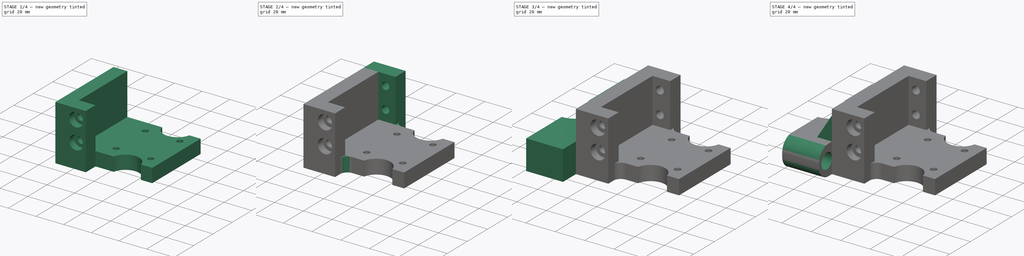
[diagram: build sequence overview — one tinted view per stage of 4, left to right]
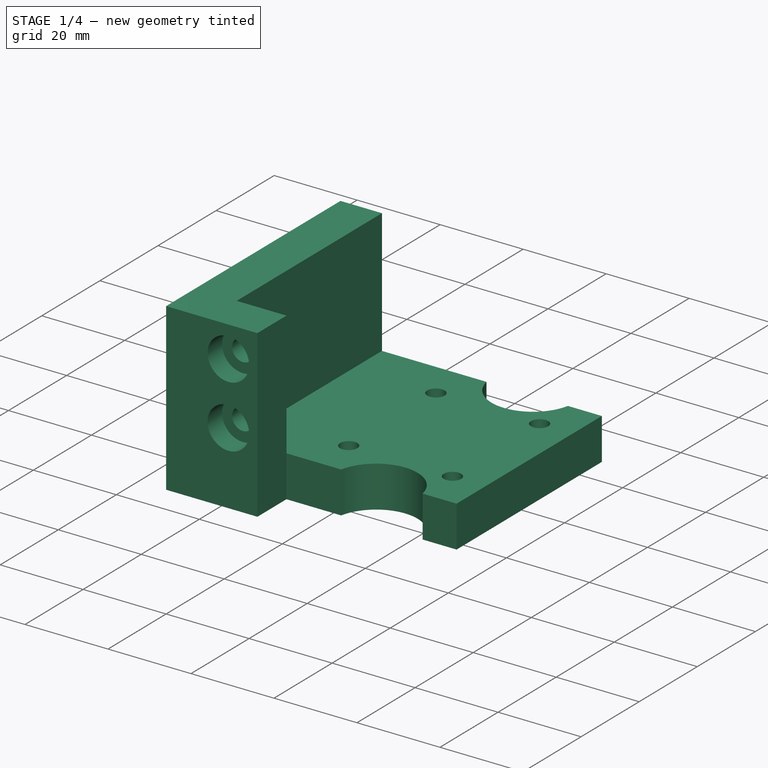
[diagram: stage 1 of 4 — iso view after this stage's code; geometry added in this stage tinted green]
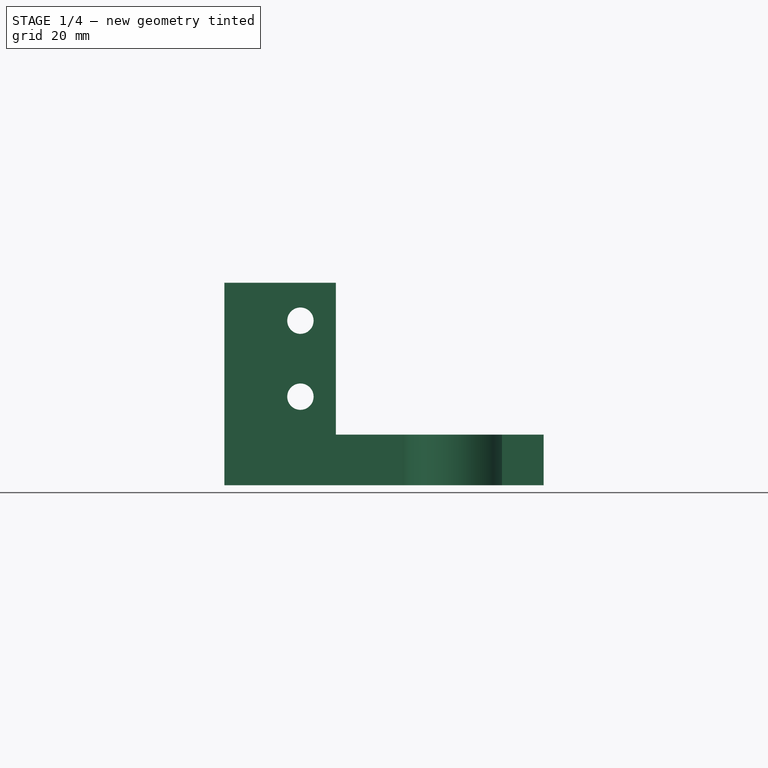
[diagram: stage 1 of 4 — front view after this stage's code; geometry added in this stage tinted green]
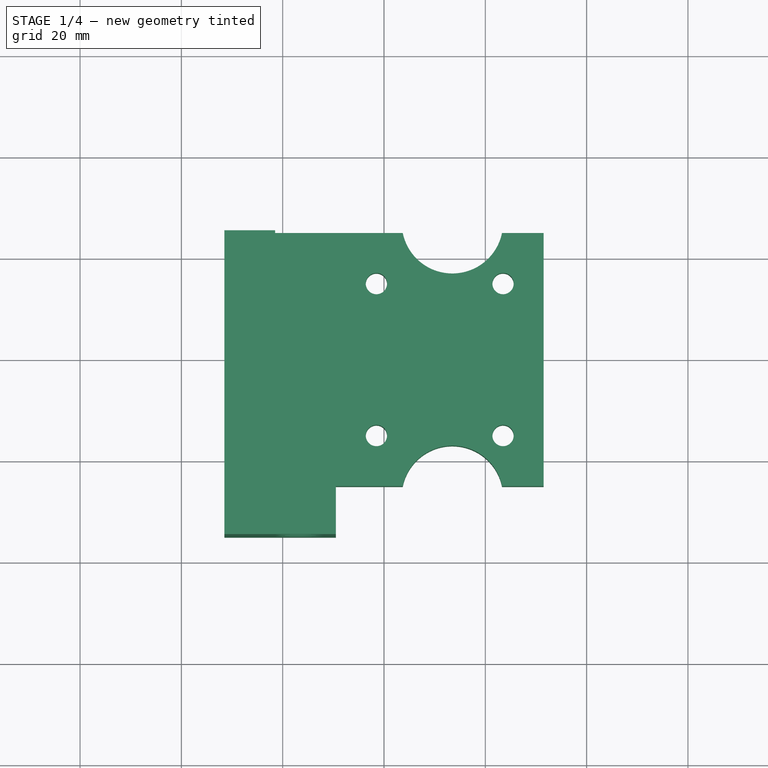
[diagram: stage 1 of 4 — top view after this stage's code; geometry added in this stage tinted green]
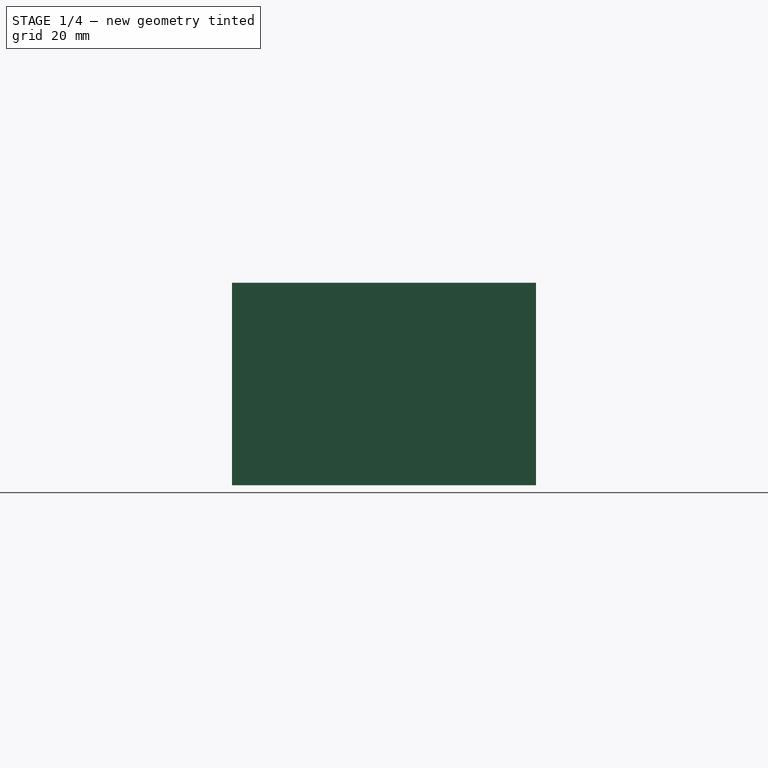
[diagram: stage 1 of 4 — right view after this stage's code; geometry added in this stage tinted green]
FCSTD DOCUMENT  (FreeCAD 2023.521R14555 (Git shallow))
Label: Dremel_Bottom
License: All rights reserved
objects: Sketcher::SketchObject×9, PartDesign::Pocket×5, PartDesign::Pad×4, PartDesign::Mirrored×2, PartDesign::Fillet×2, PartDesign::Chamfer×1, PartDesign::Body×1
note: 61 computed .brp shape members not serialized (recipe doc carries the construction recipe); baked Part::Feature solids carry a one-line shape summary decoded from their .brp

FEATURE [Sketcher::SketchObject] Sketch
  ArcFitTolerance = 1e-06
  AttachmentSupport = -> [XY_Plane]
  ExternalBSplineMaxDegree = 5
  ExternalBSplineTolerance = 0.0001
  FullyConstrained = true
  InternalTolerance = 1e-06
  InvalidShape = false
  MakeInternals = false
  MapMode = 5
  Support = -> [XY_Plane]
  TreeRank = 11
  ValidateShape = false
  sketch-geometry (20):
    g0: LineSegment StartX=-31.5 StartY=-25 StartZ=0 EndX=-31.5 EndY=25 EndZ=0
    g1: LineSegment StartX=31.5 StartY=25 StartZ=0 EndX=31.5 EndY=-25 EndZ=0
    g2: GeomPoint [constr] X=0 Y=0 Z=0
    g3: LineSegment [constr] StartX=-1.5 StartY=-15 StartZ=0 EndX=-1.5 EndY=15 EndZ=0
    g4: LineSegment [constr] StartX=-1.5 StartY=15 StartZ=0 EndX=23.5 EndY=15 EndZ=0
    g5: LineSegment [constr] StartX=23.5 StartY=15 StartZ=0 EndX=23.5 EndY=-15 EndZ=0
    g6: LineSegment [constr] StartX=23.5 StartY=-15 StartZ=0 EndX=-1.5 EndY=-15 EndZ=0
    g7: GeomPoint [constr] X=11 Y=0 Z=0
    g8: Circle CenterX=-1.5 CenterY=15 CenterZ=0 NormalX=0 NormalY=0 NormalZ=1 AngleXU=0 Radius=2.1
    g9: Circle CenterX=23.5 CenterY=15 CenterZ=0 NormalX=0 NormalY=0 NormalZ=1 AngleXU=0 Radius=2.1
    g10: Circle CenterX=23.5 CenterY=-15 CenterZ=0 NormalX=0 NormalY=0 NormalZ=1 AngleXU=0 Radius=2.1
    g11: Circle CenterX=-1.5 CenterY=-15 CenterZ=0 NormalX=0 NormalY=0 NormalZ=1 AngleXU=0 Radius=2.1
    g12: ArcOfCircle CenterX=13.5 CenterY=-27 CenterZ=0 NormalX=0 NormalY=0 NormalZ=1 AngleXU=0 Radius=10 StartAngle=0.201358 EndAngle=2.94023
    g13: LineSegment StartX=-31.5 StartY=-25 StartZ=0 EndX=3.70204 EndY=-25 EndZ=0
    g14: LineSegment StartX=23.298 StartY=-25 StartZ=0 EndX=31.5 EndY=-25 EndZ=0
    g15: ArcOfCircle CenterX=13.5 CenterY=27 CenterZ=0 NormalX=0 NormalY=0 NormalZ=1 AngleXU=0 Radius=10 StartAngle=3.34295 EndAngle=6.08183
    g16: LineSegment StartX=-31.5 StartY=25 StartZ=0 EndX=3.70204 EndY=25 EndZ=0
    g17: LineSegment StartX=31.5 StartY=25 StartZ=0 EndX=23.298 EndY=25 EndZ=0
    g18: GeomPoint [constr] X=-6.5 Y=25 Z=0
    g19: GeomPoint [constr] X=13.5 Y=0 Z=0
  constraints (50):
    c: Vertical(g0)
    c: Vertical(g1)
    c: Symmetric(g1,g0,g2)
    c: Coincident(g2,g-1)
    c: Coincident(g3,g4)
    c: Coincident(g4,g5)
    c: Coincident(g5,g6)
    c: Coincident(g6,g3)
    c: Horizontal(g4)
    c: Horizontal(g6)
    c: Vertical(g3)
    c: Vertical(g5)
    c: Symmetric(g4,g3,g7)
    c: PointOnObject(g7,g-1)
    c: Coincident(g8,g3)
    c: Coincident(g9,g4)
    c: Coincident(g10,g5)
    c: Coincident(g11,g3)
    c: Equal(g8,g9)
    c: Equal(g9,g10)
    c: Equal(g10,g11)
    c: Diameter(g11) = 4.2
    c: DistanceX(g4,g4) = 25
    c: DistanceY(g5,g5) = 30
    c: Coincident(g13,g0)
    c: Coincident(g13,g12)
    c: Coincident(g14,g12)
    c: Coincident(g14,g1)
    c: Horizontal(g14)
    c: Horizontal(g13)
    c: Horizontal(g12,g12)
    c: Coincident(g16,g0)
    c: Horizontal(g16)
    c: Coincident(g17,g1)
    c: Horizontal(g17)
    c: Coincident(g16,g15)
    c: Coincident(g15,g17)
    c: Horizontal(g15,g15)
    c: Vertical(g12,g15)
    c: Equal(g15,g12)
    c: DistanceY(g12,g15) = 54
    c: Diameter(g12) = 20
    c: DistanceX(g12,g10) = 10
    c: DistanceX(g10,g1) = 8
    c: DistanceY(g1,g1) = 50
    c: PointOnObject(g18,g16)
    c: DistanceX(g18,g15) = 20
    c: DistanceX(g0,g18) = 25
    c: PointOnObject(g19,g-1)
    c: Symmetric(g15,g12,g19)
FEATURE [PartDesign::Pad] Pad
  AddSubType = 0
  AlongSketchNormal = false
  AutoTaperInnerAngle = true
  CheckUpToFaceLimits = true
  ClaimChildren = false
  Direction = (0,0,1)
  Fit = 0
  FitJoin = 0
  InnerFit = 0
  InnerFitJoin = 0
  InvalidShape = false
  Length = 10
  Length2 = 10
  Linearize = true
  Midplane = true
  NewSolid = false
  Profile = -> Sketch
  ReferenceAxis = -> Sketch [N_Axis]
  Suppress = false
  TaperInnerAngle = 0
  TaperInnerAngleRev = 0
  TreeRank = 12
  Type = 0
  ValidateShape = true
  _ProfileBasedVersion = 1
FEATURE [Sketcher::SketchObject] Sketch001
  ArcFitTolerance = 1e-06
  AttachmentSupport = -> [Pad]
  ExternalBSplineMaxDegree = 5
  ExternalBSplineTolerance = 0.0001
  ExternalGeometry = -> [Pad]
  FullyConstrained = true
  InternalTolerance = 1e-06
  InvalidShape = false
  MakeInternals = false
  MapMode = 5
  Placement = pos=(0,0,5) rot=(0,0,1;0rad)
  Support = -> [Pad]
  TreeRank = 13
  ValidateShape = false
  sketch-geometry (4):
    g0: LineSegment StartX=-31.5 StartY=25 StartZ=0 EndX=-21.5 EndY=25 EndZ=0
    g1: LineSegment StartX=-21.5 StartY=25 StartZ=0 EndX=-21.5 EndY=-25 EndZ=0
    g2: LineSegment StartX=-21.5 StartY=-25 StartZ=0 EndX=-31.5 EndY=-25 EndZ=0
    g3: LineSegment StartX=-31.5 StartY=-25 StartZ=0 EndX=-31.5 EndY=25 EndZ=0
  constraints (10):
    c: Coincident(g0,g1)
    c: Coincident(g1,g2)
    c: Coincident(g2,g3)
    c: Coincident(g3,g0)
    c: Horizontal(g0)
    c: Horizontal(g2)
    c: Vertical(g1)
    c: Coincident(g0,g-3)
    c: Coincident(g2,g-3)
    c: DistanceX(g2,g2) = 10
FEATURE [PartDesign::Pad] Pad001
  AddSubType = 0
  AlongSketchNormal = false
  AutoTaperInnerAngle = true
  BaseFeature = -> Pad
  CheckUpToFaceLimits = true
  ClaimChildren = false
  Direction = (0,0,1)
  Fit = 0
  FitJoin = 0
  InnerFit = 0
  InnerFitJoin = 0
  InvalidShape = false
  Length = 30
  Length2 = 10
  Linearize = true
  NewSolid = false
  Profile = -> Sketch001
  ReferenceAxis = -> Sketch001 [N_Axis]
  Suppress = false
  TaperInnerAngle = 0
  TaperInnerAngleRev = 0
  TreeRank = 14
  Type = 0
  ValidateShape = true
  _ProfileBasedVersion = 1
FEATURE [Sketcher::SketchObject] Sketch002
  ArcFitTolerance = 1e-06
  AttachmentSupport = -> [Pad001]
  ExternalBSplineMaxDegree = 5
  ExternalBSplineTolerance = 0.0001
  ExternalGeometry = -> [Pad001]
  FullyConstrained = false
  InternalTolerance = 1e-06
  InvalidShape = false
  MakeInternals = false
  MapMode = 5
  Placement = pos=(0,-25,0) rot=(1,0,0;1.5708rad)
  Support = -> [Pad001]
  TreeRank = 15
  ValidateShape = false
  sketch-geometry (9):
    g0: LineSegment StartX=-31.5 StartY=35 StartZ=0 EndX=-9.5 EndY=35 EndZ=0
    g1: LineSegment StartX=-9.5 StartY=35 StartZ=0 EndX=-9.5 EndY=-5 EndZ=0
    g2: LineSegment StartX=-9.5 StartY=-5 StartZ=0 EndX=-31.5 EndY=-5 EndZ=0
    g3: LineSegment StartX=-31.5 StartY=-5 StartZ=0 EndX=-31.5 EndY=35 EndZ=0
    g4: Circle CenterX=-16.5 CenterY=27.5 CenterZ=0 NormalX=0 NormalY=0 NormalZ=1 AngleXU=0 Radius=2.6
    g5: Circle CenterX=-16.5 CenterY=12.5 CenterZ=0 NormalX=0 NormalY=0 NormalZ=1 AngleXU=0 Radius=2.6
    g6: GeomPoint [constr] X=-16.5 Y=20 Z=0
    g7: GeomPoint [constr] X=-31.5 Y=19.9323 Z=0
    g8: GeomPoint [constr] X=-21.5 Y=20 Z=0
  constraints (19):
    c: Coincident(g0,g1)
    c: Coincident(g1,g2)
    c: Coincident(g3,g0)
    c: Horizontal(g0)
    c: Horizontal(g2)
    c: Vertical(g1)
    c: Vertical(g5,g4)
    c: Equal(g4,g5)
    c: Diameter(g5) = 5.2
    c: PointOnObject(g7,g3)
    c: DistanceX(g-3,g1) = 12
    c: Coincident(g2,g-5)
    c: Coincident(g0,g-4)
    c: Coincident(g3,g2)
    c: Symmetric(g-3,g-3,g8)
    c: Horizontal(g6,g8)
    c: Symmetric(g4,g5,g6)
    c: DistanceX(g8,g6) = 5
    c: DistanceY(g5,g4) = 15
FEATURE [PartDesign::Pad] Pad002
  AddSubType = 0
  AlongSketchNormal = false
  AutoTaperInnerAngle = true
  BaseFeature = -> Pad001
  CheckUpToFaceLimits = true
  ClaimChildren = false
  Direction = (0,-1,2e-16)
  Fit = 0
  FitJoin = 0
  InnerFit = 0
  InnerFitJoin = 0
  InvalidShape = false
  Length = 10
  Length2 = 10
  Linearize = true
  NewSolid = false
  Profile = -> Sketch002
  ReferenceAxis = -> Sketch002 [N_Axis]
  Suppress = false
  TaperInnerAngle = 0
  TaperInnerAngleRev = 0
  TreeRank = 16
  Type = 0
  ValidateShape = true
  _ProfileBasedVersion = 1
FEATURE [Sketcher::SketchObject] Sketch004
  ArcFitTolerance = 1e-06
  AttachmentSupport = -> [Pad002]
  ExternalBSplineMaxDegree = 5
  ExternalBSplineTolerance = 0.0001
  ExternalGeometry = -> [Pad002]
  FullyConstrained = true
  InternalTolerance = 1e-06
  InvalidShape = false
  MakeInternals = false
  MapMode = 5
  Placement = pos=(2e-16,-35,6.3e-15) rot=(1,0,0;1.5708rad)
  Support = -> [Pad002]
  TreeRank = 21
  ValidateShape = false
  sketch-geometry (2):
    g0: Circle CenterX=-16.5 CenterY=27.5 CenterZ=0 NormalX=0 NormalY=0 NormalZ=1 AngleXU=0 Radius=5
    g1: Circle CenterX=-16.5 CenterY=12.5 CenterZ=0 NormalX=0 NormalY=0 NormalZ=1 AngleXU=0 Radius=5
  constraints (4):
    c: Coincident(g0,g-3)
    c: Coincident(g1,g-4)
    c: Equal(g1,g0)
    c: Diameter(g0) = 10
FEATURE [PartDesign::Pocket] Pocket001
  AddSubType = 1
  AlongSketchNormal = false
  AutoTaperInnerAngle = true
  BaseFeature = -> Pad002
  CheckUpToFaceLimits = true
  ClaimChildren = false
  Direction = (0,1,-2e-16)
  Fit = 0
  FitJoin = 0
  InnerFit = 0
  InnerFitJoin = 0
  InvalidShape = false
  Length = 5
  Length2 = 10
  Linearize = true
  NewSolid = false
  Profile = -> Sketch004
  ReferenceAxis = -> Sketch004 [N_Axis]
  Suppress = false
  TaperInnerAngle = 0
  TaperInnerAngleRev = 0
  TreeRank = 22
  Type = 0
  ValidateShape = true
  _ProfileBasedVersion = 1
  _Version = 1
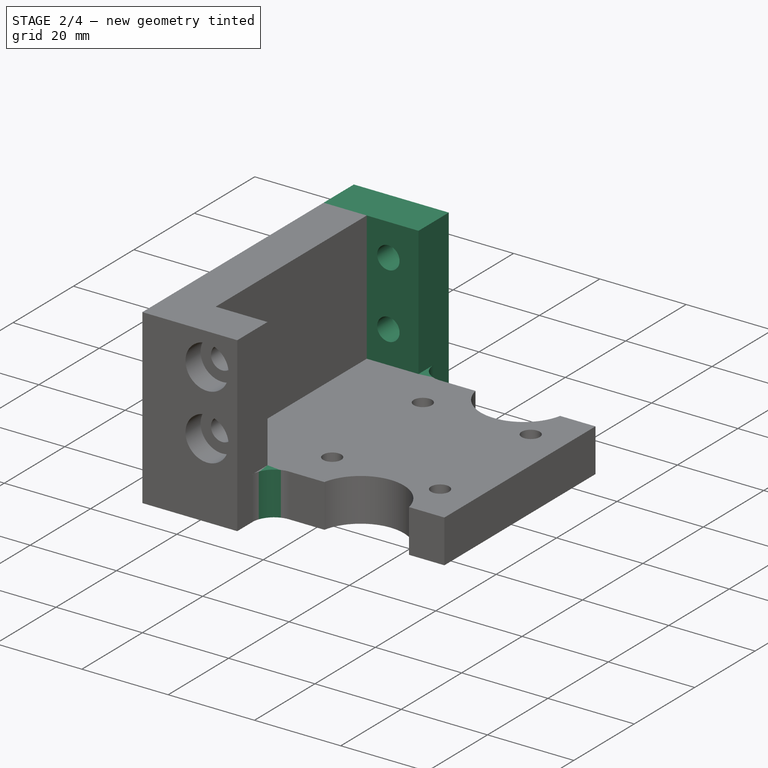
[diagram: stage 2 of 4 — iso view after this stage's code; geometry added in this stage tinted green]
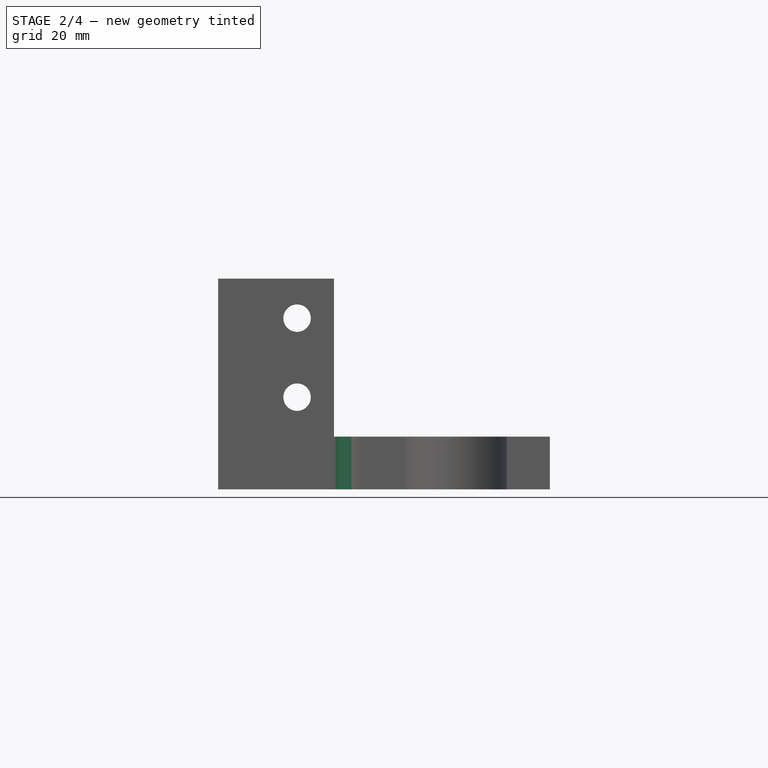
[diagram: stage 2 of 4 — front view after this stage's code; geometry added in this stage tinted green]
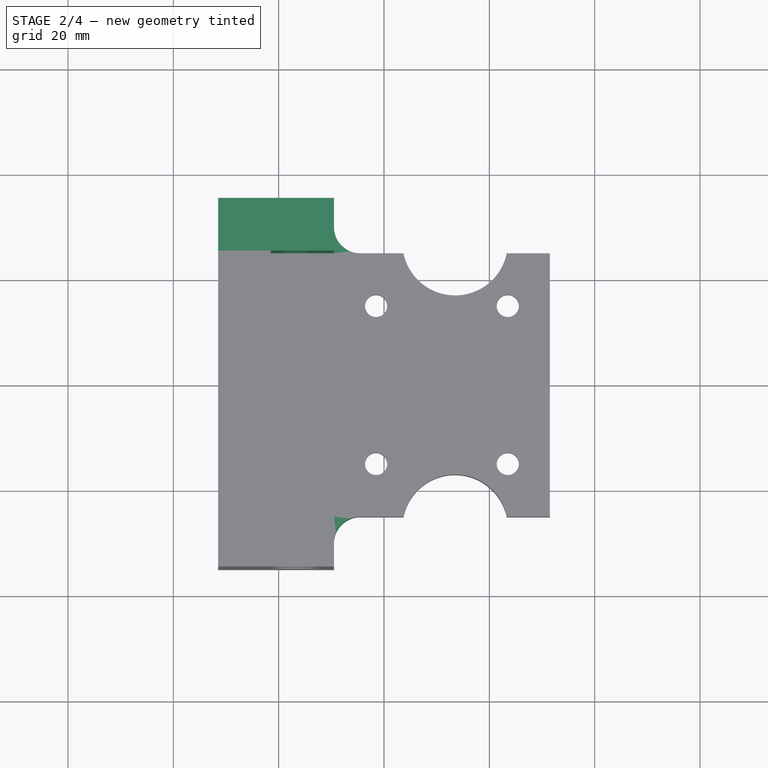
[diagram: stage 2 of 4 — top view after this stage's code; geometry added in this stage tinted green]
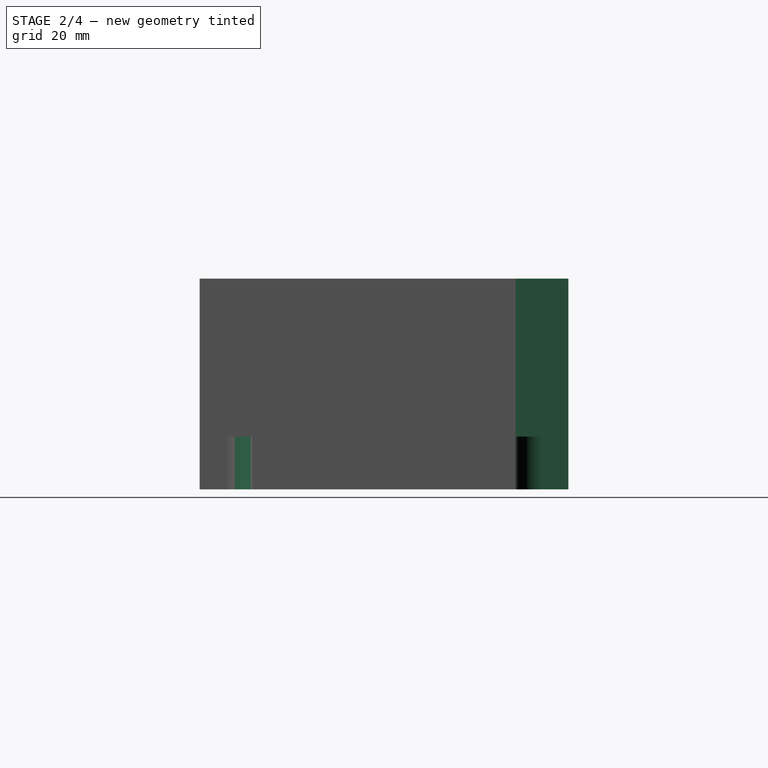
[diagram: stage 2 of 4 — right view after this stage's code; geometry added in this stage tinted green]
FEATURE [PartDesign::Mirrored] Mirrored
  AddSubType = 0
  BaseFeature = -> Pocket001
  CopyShape = false
  InvalidShape = false
  MirrorPlane = -> XZ_Plane
  NewSolid = false
  OriginalSubs = -> [Pad002,Pocket001]
  Originals = -> [Pad002,Pocket001]
  ParallelTransform = true
  SubTransform = true
  Suppress = false
  TreeRank = 17
  ValidateShape = true
  _Version = 3
FEATURE [PartDesign::Fillet] Fillet
  AddSubType = 0
  Base = -> Mirrored [Edge47,Edge10]
  BaseFeature = -> Mirrored
  InvalidShape = false
  NewSolid = false
  Radius = 5
  SupportTransform = false
  Suppress = false
  TreeRank = 23
  UseAllEdges = false
  ValidateShape = true
FEATURE [Sketcher::SketchObject] Sketch003
  ArcFitTolerance = 1e-06
  AttachmentSupport = -> [Fillet]
  ExternalBSplineMaxDegree = 5
  ExternalBSplineTolerance = 0.0001
  ExternalGeometry = -> [Fillet]
  FullyConstrained = true
  InternalTolerance = 1e-06
  InvalidShape = false
  MakeInternals = false
  MapMode = 5
  Placement = pos=(0,0,-5) rot=(1,0,0;3.14159rad)
  Support = -> [Fillet]
  TreeRank = 19
  ValidateShape = false
  sketch-geometry (4):
    g0: Circle CenterX=-1.5 CenterY=15 CenterZ=0 NormalX=0 NormalY=0 NormalZ=1 AngleXU=0 Radius=4.25
    g1: Circle CenterX=23.5 CenterY=15 CenterZ=0 NormalX=0 NormalY=0 NormalZ=1 AngleXU=0 Radius=4.25
    g2: Circle CenterX=23.5 CenterY=-15 CenterZ=0 NormalX=0 NormalY=0 NormalZ=1 AngleXU=0 Radius=4.25
    g3: Circle CenterX=-1.5 CenterY=-15 CenterZ=0 NormalX=0 NormalY=0 NormalZ=1 AngleXU=0 Radius=4.25
  constraints (8):
    c: Coincident(g0,g-3)
    c: Coincident(g1,g-4)
    c: Coincident(g2,g-5)
    c: Coincident(g3,g-6)
    c: Diameter(g0) = 8.5
    c: Equal(g0,g1)
    c: Equal(g1,g2)
    c: Equal(g2,g3)
FEATURE [PartDesign::Pocket] Pocket
  AddSubType = 1
  AlongSketchNormal = false
  AutoTaperInnerAngle = true
  BaseFeature = -> Fillet
  CheckUpToFaceLimits = true
  ClaimChildren = false
  Direction = (0,0,1)
  Fit = 0
  FitJoin = 0
  InnerFit = 0
  InnerFitJoin = 0
  InvalidShape = false
  Length = 5
  Length2 = 10
  Linearize = true
  NewSolid = false
  Profile = -> Sketch003
  ReferenceAxis = -> Sketch003 [N_Axis]
  Suppress = false
  TaperInnerAngle = 0
  TaperInnerAngleRev = 0
  TreeRank = 20
  Type = 0
  ValidateShape = true
  _ProfileBasedVersion = 1
  _Version = 1
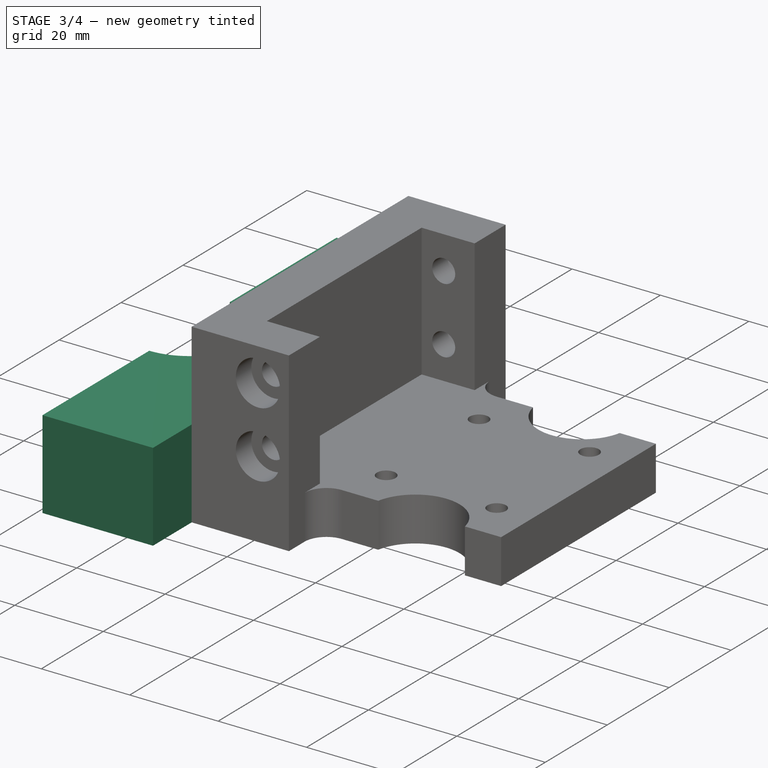
[diagram: stage 3 of 4 — iso view after this stage's code; geometry added in this stage tinted green]
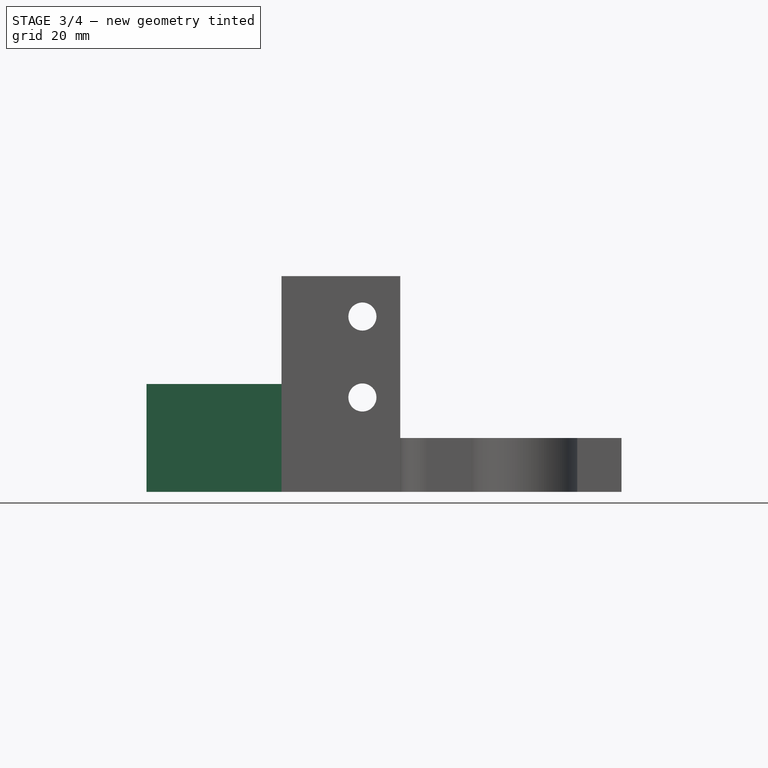
[diagram: stage 3 of 4 — front view after this stage's code; geometry added in this stage tinted green]
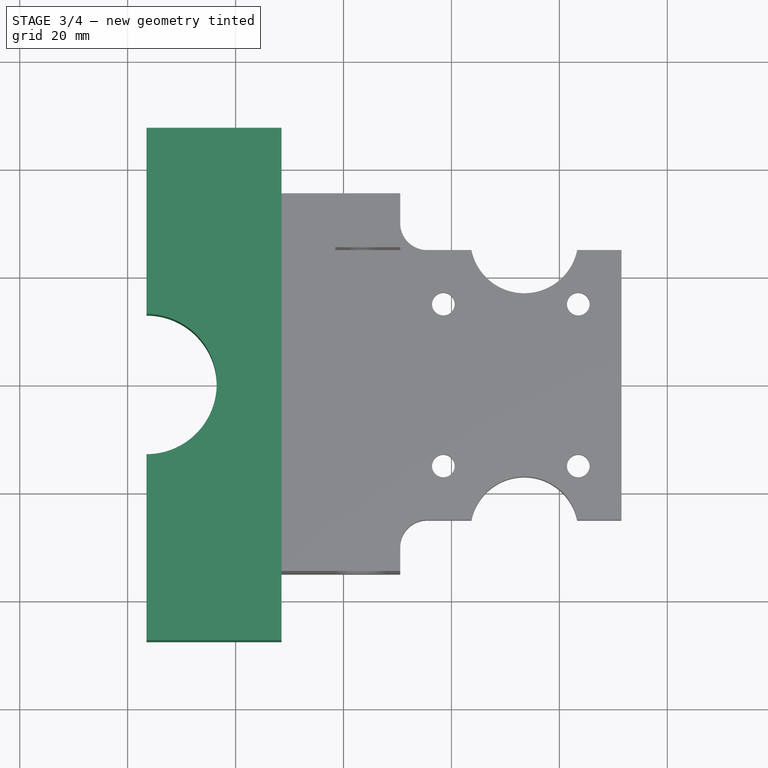
[diagram: stage 3 of 4 — top view after this stage's code; geometry added in this stage tinted green]
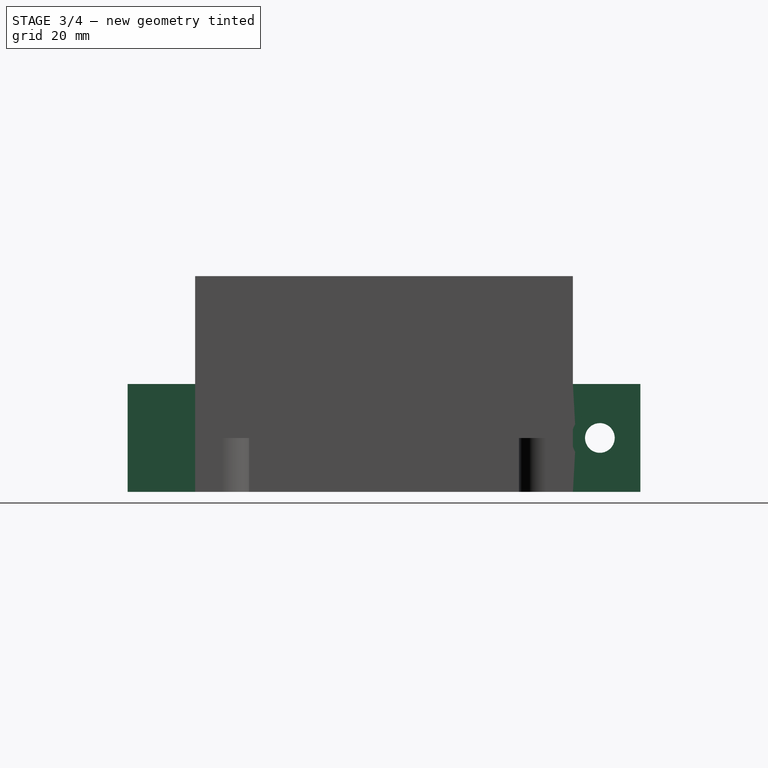
[diagram: stage 3 of 4 — right view after this stage's code; geometry added in this stage tinted green]
FEATURE [Sketcher::SketchObject] Sketch005
  ArcFitTolerance = 1e-06
  AttachmentSupport = -> [Pocket]
  ExternalBSplineMaxDegree = 5
  ExternalBSplineTolerance = 0.0001
  ExternalGeometry = -> [Pocket]
  FullyConstrained = true
  InternalTolerance = 1e-06
  InvalidShape = false
  MakeInternals = false
  MapMode = 5
  Placement = pos=(0,0,-5) rot=(1,0,0;3.14159rad)
  Support = -> [Pocket]
  TreeRank = 24
  ValidateShape = false
  sketch-geometry (7):
    g0: ArcOfCircle CenterX=-56.5 CenterY=0 CenterZ=0 NormalX=0 NormalY=0 NormalZ=1 AngleXU=0 Radius=13 StartAngle=4.71239 EndAngle=7.85398
    g1: LineSegment StartX=-56.5 StartY=13 StartZ=0 EndX=-56.5 EndY=47.5 EndZ=0
    g2: LineSegment StartX=-56.5 StartY=47.5 StartZ=0 EndX=-31.5 EndY=47.5 EndZ=0
    g3: LineSegment StartX=-56.5 StartY=-13 StartZ=0 EndX=-56.5 EndY=-47.5 EndZ=0
    g4: LineSegment StartX=-56.5 StartY=-47.5 StartZ=0 EndX=-31.5 EndY=-47.5 EndZ=0
    g5: LineSegment StartX=-31.5 StartY=-47.5 StartZ=0 EndX=-31.5 EndY=47.5 EndZ=0
    g6: GeomPoint [constr] X=-31.5 Y=0 Z=0
  constraints (20):
    c: PointOnObject(g0,g-1)
    c: Diameter(g0) = 26
    c: Vertical(g0,g0)
    c: Vertical(g0,g0)
    c: Coincident(g1,g0)
    c: Vertical(g1)
    c: Horizontal(g2)
    c: Coincident(g1,g2)
    c: Coincident(g3,g0)
    c: Vertical(g3)
    c: Coincident(g4,g3)
    c: Coincident(g5,g4)
    c: Coincident(g5,g2)
    c: Horizontal(g4)
    c: DistanceX(g2,g2) = 25
    c: Vertical(g-4,g4)
    c: Vertical(g5,g-3)
    c: DistanceY(g5,g5) = 95
    c: Symmetric(g5,g5,g6)
    c: Horizontal(g6,g-1)
FEATURE [PartDesign::Pad] Pad003
  AddSubType = 0
  AlongSketchNormal = false
  AutoTaperInnerAngle = true
  BaseFeature = -> Pocket
  CheckUpToFaceLimits = true
  ClaimChildren = false
  Direction = (0,0,-1)
  Fit = 0
  FitJoin = 0
  InnerFit = 0
  InnerFitJoin = 0
  InvalidShape = false
  Length = 20
  Length2 = 10
  Linearize = true
  NewSolid = false
  Profile = -> Sketch005
  ReferenceAxis = -> Sketch005 [N_Axis]
  Reversed = true
  Suppress = false
  TaperInnerAngle = 0
  TaperInnerAngleRev = 0
  TreeRank = 25
  Type = 0
  ValidateShape = true
  _ProfileBasedVersion = 1
FEATURE [Sketcher::SketchObject] Sketch006
  ArcFitTolerance = 1e-06
  AttachmentSupport = -> [Pad003]
  ExternalBSplineMaxDegree = 5
  ExternalBSplineTolerance = 0.0001
  ExternalGeometry = -> [Pad003]
  FullyConstrained = true
  InternalTolerance = 1e-06
  InvalidShape = false
  MakeInternals = false
  MapMode = 5
  Placement = pos=(-56.5,0,0) rot=(0.57735,-0.57735,-0.57735;2.0944rad)
  Support = -> [Pad003]
  TreeRank = 26
  ValidateShape = false
  sketch-geometry (2):
    g0: GeomPoint [constr] X=-47.5 Y=5 Z=0
    g1: Circle CenterX=-40 CenterY=5 CenterZ=0 NormalX=0 NormalY=0 NormalZ=1 AngleXU=0 Radius=2.75
  constraints (4):
    c: Diameter(g1) = 5.5
    c: Symmetric(g-3,g-3,g0)
    c: Horizontal(g1,g0)
    c: DistanceX(g1,g-1) = 40
FEATURE [PartDesign::Pocket] Pocket002
  AddSubType = 1
  AlongSketchNormal = false
  AutoTaperInnerAngle = true
  BaseFeature = -> Pad003
  CheckUpToFaceLimits = true
  ClaimChildren = false
  Direction = (1,0,0)
  Fit = 0
  FitJoin = 0
  InnerFit = 0
  InnerFitJoin = 0
  InvalidShape = false
  Length = 5
  Length2 = 10
  Linearize = true
  NewSolid = false
  Profile = -> Sketch006
  ReferenceAxis = -> Sketch006 [N_Axis]
  Suppress = false
  TaperInnerAngle = 0
  TaperInnerAngleRev = 0
  TreeRank = 27
  Type = 1
  ValidateShape = true
  _ProfileBasedVersion = 1
  _Version = 1
FEATURE [Sketcher::SketchObject] Sketch007
  ArcFitTolerance = 1e-06
  AttachmentSupport = -> [Pocket002]
  ExternalBSplineMaxDegree = 5
  ExternalBSplineTolerance = 0.0001
  ExternalGeometry = -> [Pocket002]
  FullyConstrained = true
  InternalTolerance = 1e-06
  InvalidShape = false
  MakeInternals = false
  MapMode = 5
  Placement = pos=(-31.5,0,0) rot=(0.57735,0.57735,0.57735;2.0944rad)
  Support = -> [Pocket002]
  TreeRank = 28
  ValidateShape = false
  sketch-geometry (1):
    g0: Circle CenterX=40 CenterY=5 CenterZ=0 NormalX=0 NormalY=0 NormalZ=1 AngleXU=0 Radius=5.25
  constraints (2):
    c: Coincident(g0,g-3)
    c: Diameter(g0) = 10.5
FEATURE [PartDesign::Pocket] Pocket003
  AddSubType = 1
  AlongSketchNormal = false
  AutoTaperInnerAngle = true
  BaseFeature = -> Pocket002
  CheckUpToFaceLimits = true
  ClaimChildren = false
  Direction = (-1,0,0)
  Fit = 0
  FitJoin = 0
  InnerFit = 0
  InnerFitJoin = 0
  InvalidShape = false
  Length = 10
  Length2 = 10
  Linearize = true
  NewSolid = false
  Profile = -> Sketch007
  ReferenceAxis = -> Sketch007 [N_Axis]
  Suppress = false
  TaperInnerAngle = 0
  TaperInnerAngleRev = 0
  TreeRank = 29
  Type = 0
  ValidateShape = true
  _ProfileBasedVersion = 1
  _Version = 1
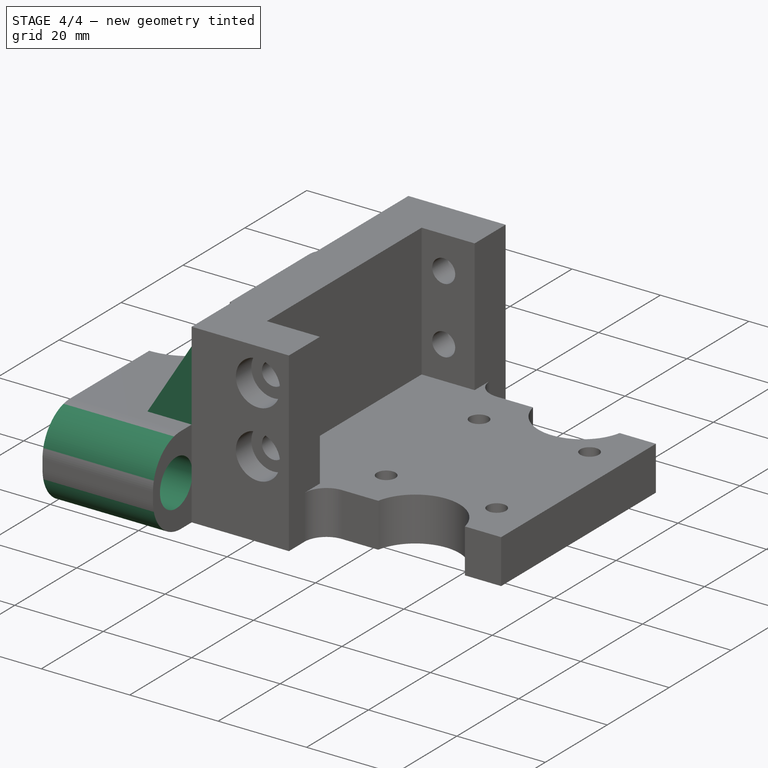
[diagram: stage 4 of 4 — iso view after this stage's code; geometry added in this stage tinted green]
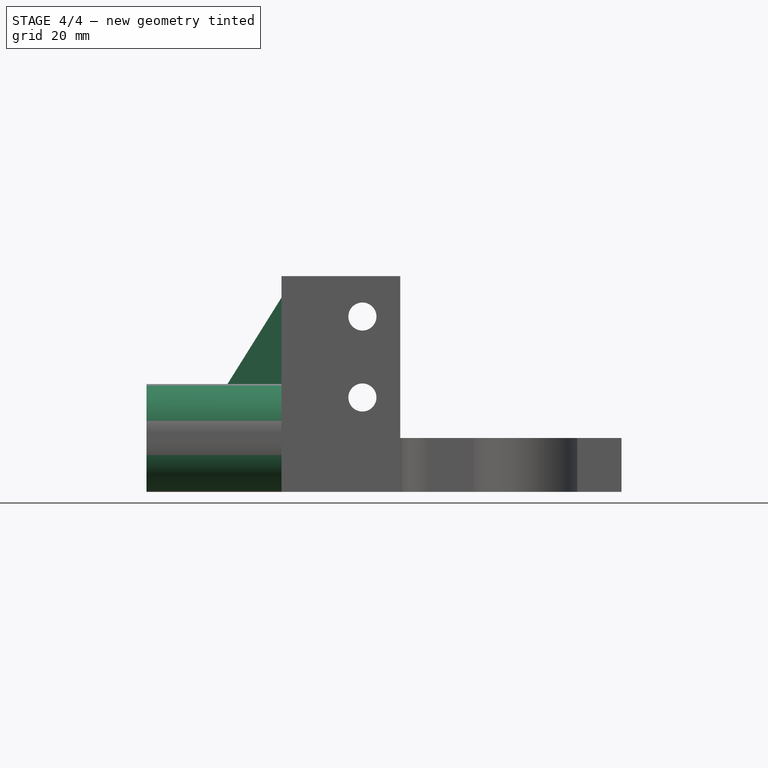
[diagram: stage 4 of 4 — front view after this stage's code; geometry added in this stage tinted green]
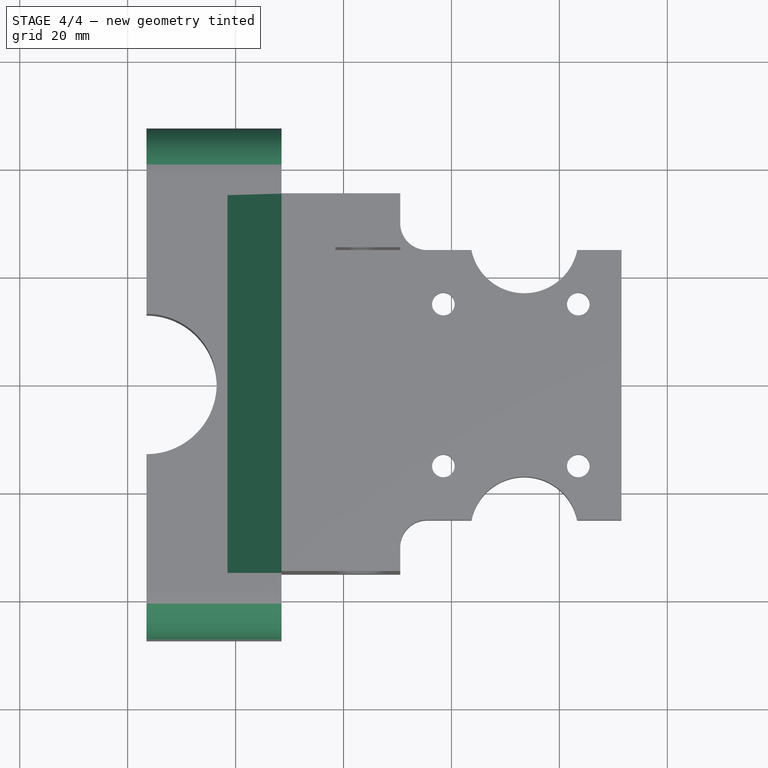
[diagram: stage 4 of 4 — top view after this stage's code; geometry added in this stage tinted green]
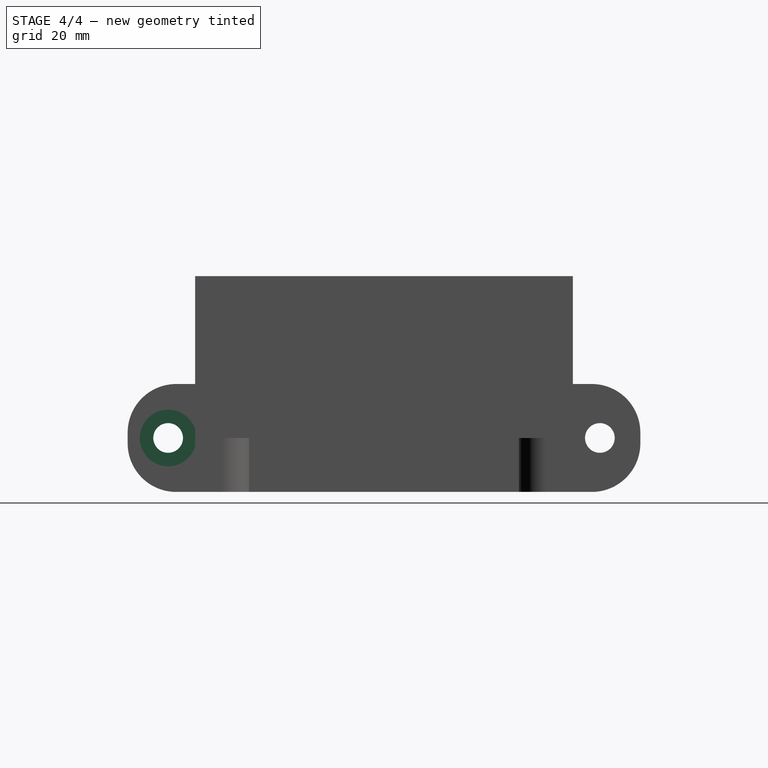
[diagram: stage 4 of 4 — right view after this stage's code; geometry added in this stage tinted green]
FEATURE [PartDesign::Mirrored] Mirrored001
  AddSubType = 0
  BaseFeature = -> Pocket003
  CopyShape = false
  InvalidShape = false
  MirrorPlane = -> Sketch006 [V_Axis]
  NewSolid = false
  OriginalSubs = -> [Pocket002,Pocket003]
  Originals = -> [Pocket002,Pocket003]
  ParallelTransform = true
  SubTransform = true
  Suppress = false
  TreeRank = 30
  ValidateShape = true
  _Version = 3
FEATURE [PartDesign::Chamfer] Chamfer
  AddSubType = 0
  Angle = 45
  Base = -> Mirrored001 [Edge145]
  BaseFeature = -> Mirrored001
  ChamferType = 1
  FlipDirection = false
  InvalidShape = false
  NewSolid = false
  Size = 10
  Size2 = 16
  SupportTransform = false
  Suppress = false
  TreeRank = 31
  UseAllEdges = false
  ValidateShape = true
FEATURE [PartDesign::Fillet] Fillet001
  AddSubType = 0
  Base = -> Chamfer [Edge23,Edge73,Edge29,Edge82]
  BaseFeature = -> Chamfer
  InvalidShape = false
  NewSolid = false
  Radius = 9
  SupportTransform = false
  Suppress = false
  TreeRank = 32
  UseAllEdges = false
  ValidateShape = true
FEATURE [Sketcher::SketchObject] Sketch008
  ArcFitTolerance = 1e-06
  AttachmentSupport = -> [Fillet001]
  ExternalBSplineMaxDegree = 5
  ExternalBSplineTolerance = 0.0001
  ExternalGeometry = -> [Fillet001]
  FixShape = 1
  FullyConstrained = true
  InternalTolerance = 1e-06
  InvalidShape = false
  MakeInternals = false
  MapMode = 5
  Placement = pos=(0,0,-5) rot=(1,0,0;3.14159rad)
  Support = -> [Fillet001]
  TreeRank = 33
  ValidateShape = false
  sketch-geometry (4):
    g0: Circle CenterX=-44 CenterY=30 CenterZ=0 NormalX=0 NormalY=0 NormalZ=1 AngleXU=0 Radius=6.5
    g1: Circle CenterX=16 CenterY=0 CenterZ=0 NormalX=0 NormalY=0 NormalZ=1 AngleXU=0 Radius=6.5
    g2: Circle CenterX=-44 CenterY=-30 CenterZ=0 NormalX=0 NormalY=0 NormalZ=1 AngleXU=0 Radius=6.5
    g3: GeomPoint [constr] X=-44 Y=38.5 Z=0
  constraints (9):
    c: PointOnObject(g1,g-1)
    c: Symmetric(g2,g0,g-1)
    c: Vertical(g0,g3)
    c: Symmetric(g-3,g-3,g3)
    c: Equal(g0,g2)
    c: Equal(g2,g1)
    c: Diameter(g1) = 13
    c: DistanceY(g2,g0) = 60
    c: DistanceX(g2,g1) = 60
FEATURE [PartDesign::Pocket] Pocket004
  AddSubType = 1
  AlongSketchNormal = false
  AutoTaperInnerAngle = true
  BaseFeature = -> Fillet001
  CheckUpToFaceLimits = true
  ClaimChildren = false
  Direction = (0,0,1)
  Fit = 0
  FitJoin = 0
  FixShape = 1
  InnerFit = 0
  InnerFitJoin = 0
  InvalidShape = false
  Length = 4
  Length2 = 10
  Linearize = true
  NewSolid = false
  Profile = -> Sketch008
  ReferenceAxis = -> Sketch008 [N_Axis]
  Refine = true
  Suppress = false
  TaperInnerAngle = 0
  TaperInnerAngleRev = 0
  TreeRank = 34
  Type = 0
  ValidateShape = true
  _ProfileBasedVersion = 1
  _Version = 1
FEATURE [PartDesign::Body] Body
  AutoGroupSolids = false
  ClaimAllChildren = false
  ExportMode = 0
  Group = -> [Sketch,Pad,Sketch001,Pad001,Sketch002,Pad002,Sketch004,Pocket001,Mirrored,Fillet,Sketch003,Pocket,Sketch005,Pad003,Sketch006,Pocket002,Sketch007,Pocket003,Mirrored001,Chamfer,Fillet001,Sketch008,Pocket004]
  InvalidShape = false
  Origin = -> Origin
  Tip = -> Pocket004
  TreeRank = 10
  ValidateShape = false
  _ExportChildren = -> [Pad,Pad001,Pad002,Pocket001,Mirrored,Fillet,Pocket,Pad003,Pocket002,Pocket003,Mirrored001,Chamfer,Fillet001,Pocket004]
  _GroupVersion = 1
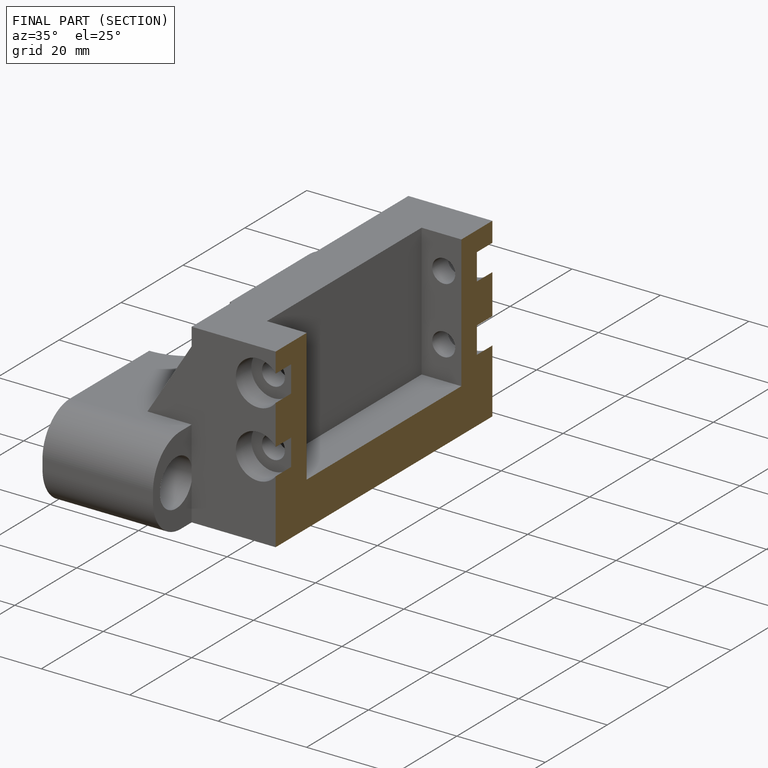
[diagram: finished part — half-section view (interior)]
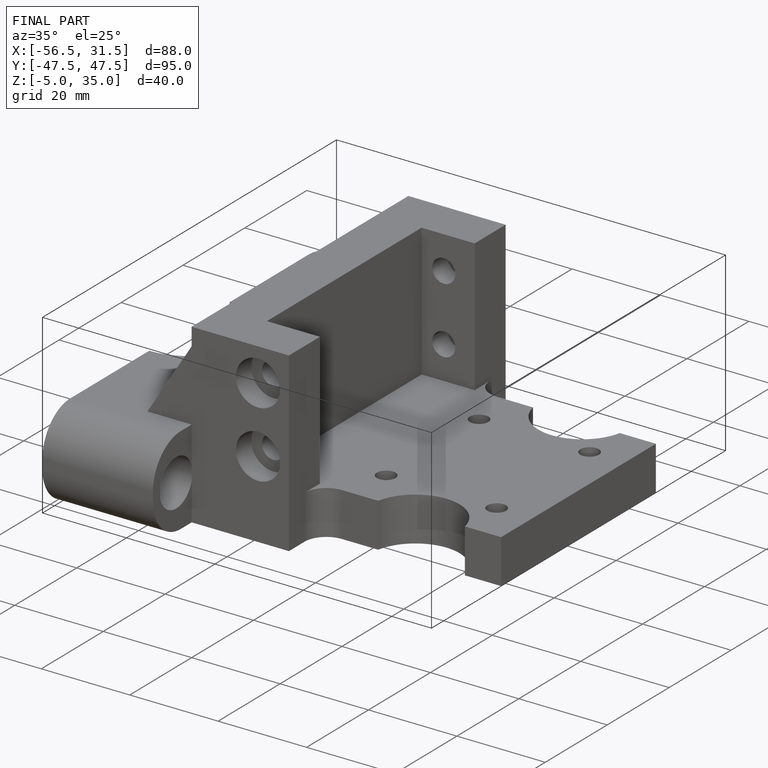
[diagram: finished part — iso view with bounding-box wireframe]
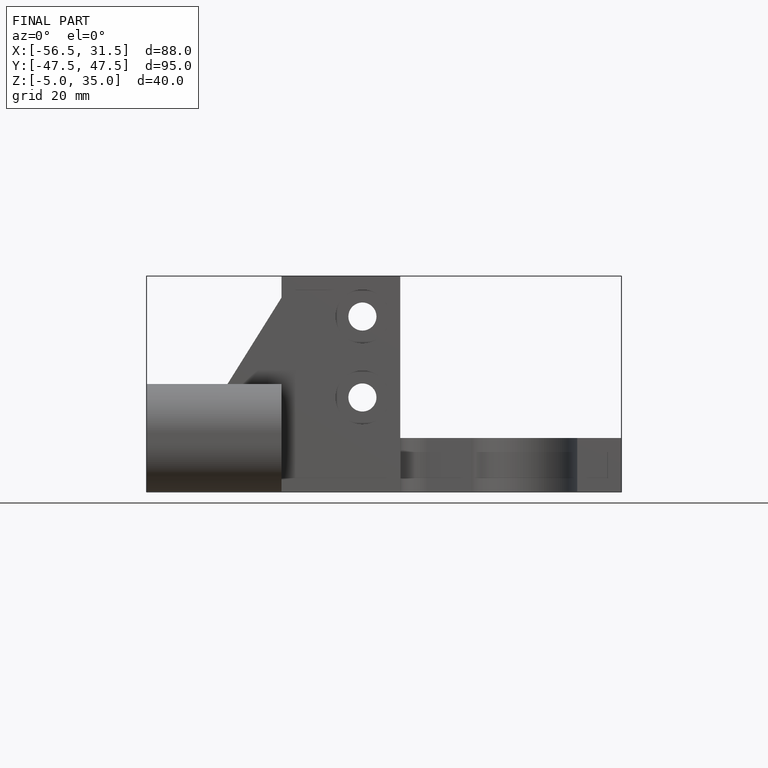
[diagram: finished part — front view with bounding-box wireframe]
